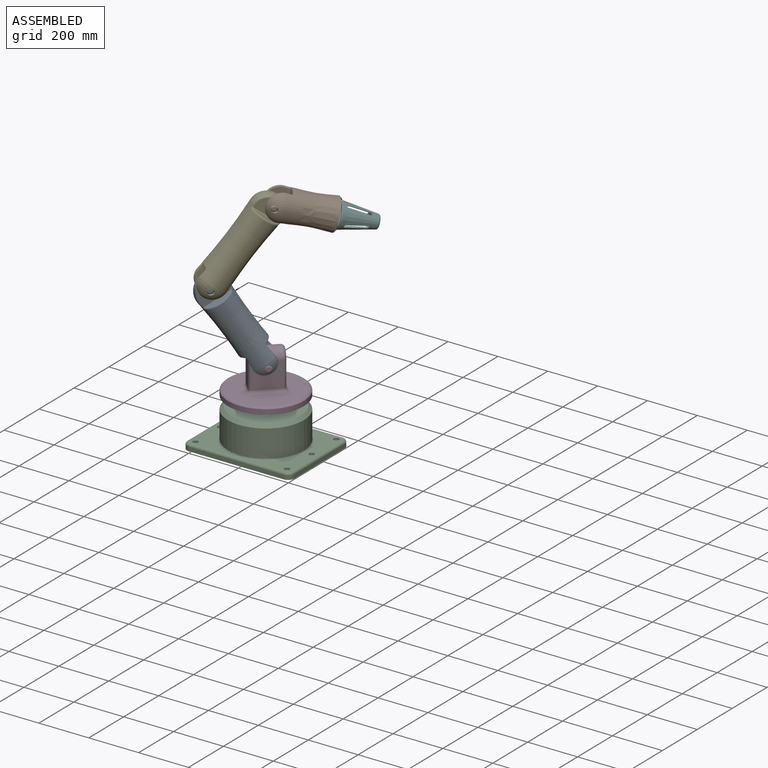
[diagram: assembled view]
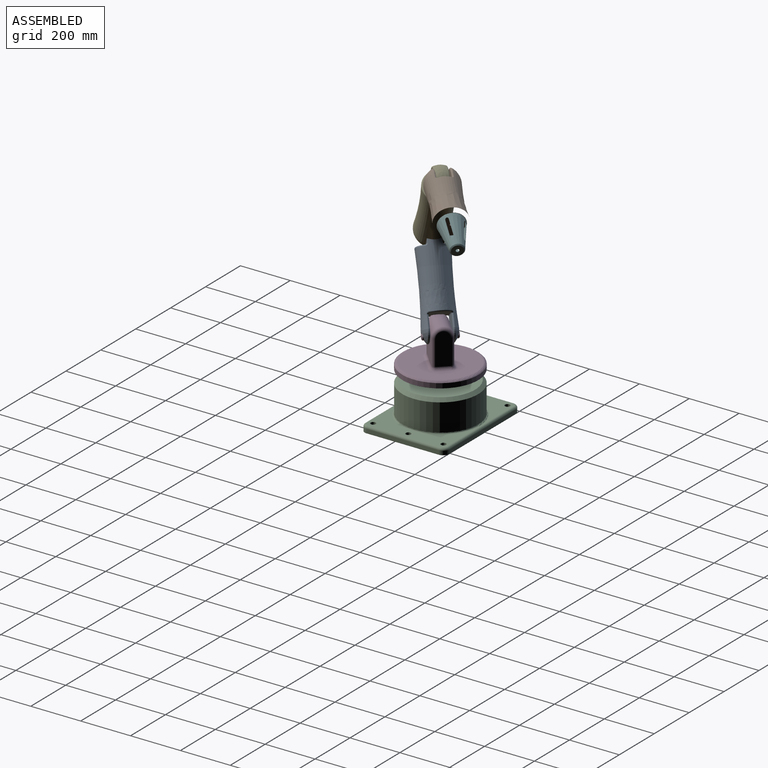
[diagram: assembled view, second angle]
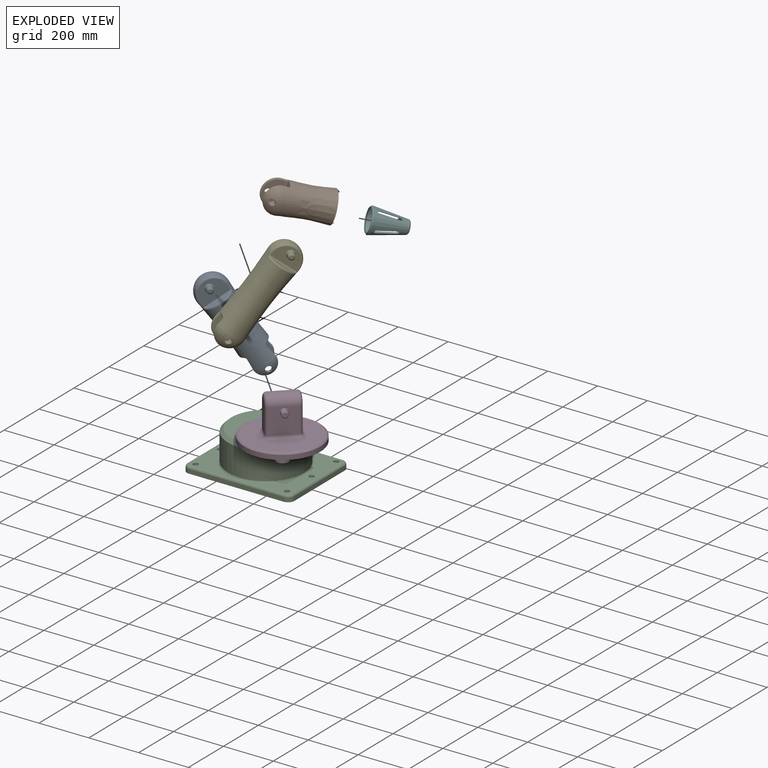
[diagram: exploded view]
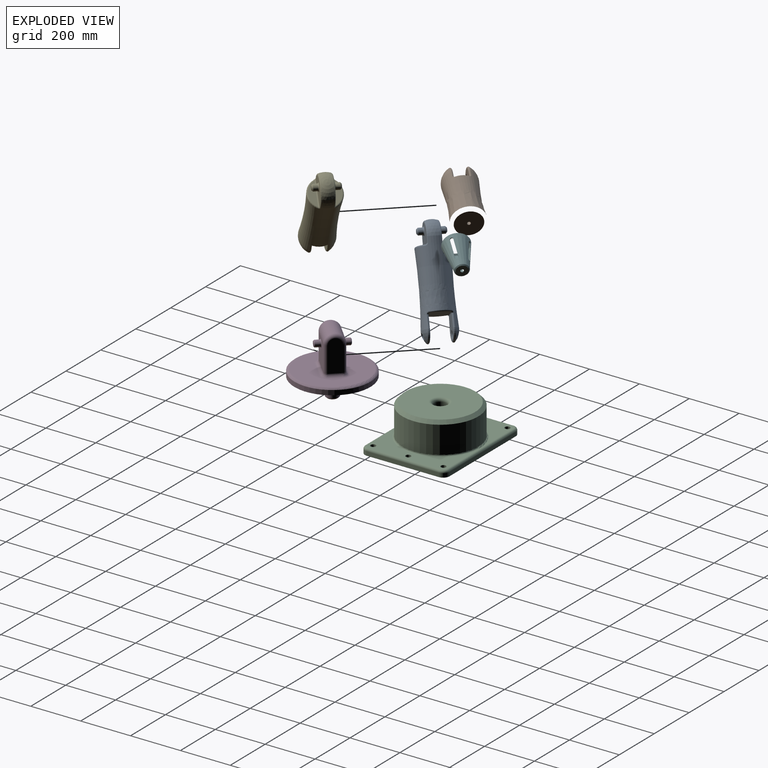
[diagram: exploded view, second angle]
ASSEMBLY  parts=6 mates=5
PART A: 53 faces, bbox 132.9x129.6x417.7 mm
  f0: revolved ~304.8x126.67mm, area 76830.9mm2, adj f1,f12,f13,f14,f15,f16,f17,f18
  f1: bspline ~14.54x14.39mm, area 139.9mm2, adj f0,f2,f12,f52
  f2: cylinder r=5.08mm len=87.3mm, axis (0,-1,0), area 623.6mm2, adj f1,f3,f9,f48
  f3: plane 109.46x66.04mm, normal (0,0,1), area 6762.6mm2, adj f2,f4,f12,f47
  f4: cylinder r=5.08mm len=87.3mm, axis (0,1,0), area 623.6mm2, adj f3,f5,f13,f46
  f5: plane 87.07x78.71mm, normal (1,0,0), area 4953.4mm2, adj f4,f6,f7,f14,f15
  f6: bspline ~63.9x19.12mm, area 595.2mm2, adj f5,f15,f17,f46
  f7: torus R=17.78mm, axis (-1,0,0), area 729.3mm2, adj f5,f8
  f8: cylinder r=12.7mm len=25.4mm, axis (-1,0,0), area 1323.3mm2, adj f7,f16
  f9: plane 87.07x78.71mm, normal (-1,0,0), area 4953.4mm2, adj f2,f10,f49,f51,f52
  f10: torus R=17.78mm, axis (-1,0,0), area 729.3mm2, adj f9,f11
  f11: cylinder r=12.7mm len=25.4mm, axis (-1,0,0), area 1336.4mm2, adj f10,f50
  f12: torus R=54.73mm, axis (0,0,1), area 619mm2, adj f0,f1,f3,f13
  f13: bspline ~14.53x14.52mm, area 139.9mm2, adj f0,f4,f12,f14
  f14: bspline ~63.9x19.12mm, area 595.2mm2, adj f0,f5,f13,f15
  f15: torus R=39.35mm, axis (-1,0,0), area 1650.1mm2, adj f0,f5,f6,f14,f16,f17
  f16: sphere r=63.5mm, area 2767.8mm2, adj f0,f8,f15,f17
  f17: revolved ~48x5.12mm, area 96mm2, adj f0,f6,f15,f16
  f18: revolved ~0x0mm, area 0mm2, adj f0,f46
  f19: bspline ~12.3x12.26mm, area 92.4mm2, adj f0,f20,f28,f45
  f20: cylinder r=5.08mm len=106.42mm, axis (0,1,0), area 802.3mm2, adj f19,f21,f27,f44
  f21: plane 109.55x75.09mm, normal (-1,0,0), area 5912.6mm2, adj f20,f22,f26,f28,f43
  f22: torus R=17.78mm, axis (1,0,0), area 729.3mm2, adj f21,f23
  f23: cylinder r=12.7mm len=25.4mm, axis (-1,0,0), area 1216.1mm2, adj f22,f24
  f24: cone r=7.62mm half-angle=45deg, axis (-1,0,0), area 458.6mm2, adj f23,f25
  f25: plane 15.24x15.24mm, normal (-1,0,0), area 182.4mm2, adj f24
  f26: torus R=54.77mm, axis (1,0,0), area 1114.2mm2, adj f21,f28,f42,f43
  f27: plane 94.66x25.81mm, normal (0,0,-1), area 1722.1mm2, adj f20,f45
  f28: bspline ~52.16x8.45mm, area 127.2mm2, adj f0,f19,f21,f26,f42
  f29: bspline ~52.16x8.45mm, area 127.2mm2, adj f0,f30,f31,f38,f42
  f30: torus R=54.77mm, axis (1,0,0), area 1114.2mm2, adj f29,f31,f41,f42
  f31: plane 109.55x75.09mm, normal (1,0,0), area 5912.6mm2, adj f29,f30,f32,f36,f41
  f32: torus R=17.78mm, axis (1,0,0), area 729.3mm2, adj f31,f33
  f33: cylinder r=12.7mm len=25.4mm, axis (1,0,0), area 1216.1mm2, adj f32,f34
  f34: cone r=12.7mm half-angle=45deg, axis (1,0,0), area 458.6mm2, adj f33,f35
  f35: plane 15.24x15.24mm, normal (1,0,0), area 182.4mm2, adj f34
  f36: cylinder r=5.08mm len=106.42mm, axis (0,1,0), area 802.3mm2, adj f31,f37,f38,f40
  f37: plane 94.66x25.81mm, normal (0,0,-1), area 1722.1mm2, adj f36,f39
  f38: bspline ~12.68x12.08mm, area 92.4mm2, adj f0,f29,f36,f39
  f39: torus R=56.29mm, axis (0,0,1), area 988mm2, adj f0,f37,f38,f40
  f40: bspline ~12.3x12.26mm, area 92.4mm2, adj f0,f36,f39,f41
  f41: bspline ~52.16x8.45mm, area 127.2mm2, adj f0,f30,f31,f40,f42
  f42: sphere r=63.5mm, area 8812.3mm2, adj f0,f26,f28,f29,f30,f41,f43
  f43: bspline ~52.16x8.45mm, area 127.2mm2, adj f0,f21,f26,f42,f44
  f44: bspline ~12.68x12.08mm, area 92.4mm2, adj f0,f20,f43,f45
  f45: torus R=56.29mm, axis (0,0,1), area 988mm2, adj f0,f19,f27,f44
  f46: bspline ~14.54x14.39mm, area 139.9mm2, adj f0,f4,f6,f18,f47
  f47: torus R=54.73mm, axis (0,0,1), area 619mm2, adj f0,f3,f46,f48
  f48: bspline ~14.53x14.52mm, area 139.9mm2, adj f0,f2,f47,f49
  f49: bspline ~63.9x19.12mm, area 595.2mm2, adj f0,f9,f48,f51
  f50: sphere r=63.5mm, area 2767.6mm2, adj f0,f11,f51
  f51: torus R=39.35mm, axis (-1,0,0), area 1650.1mm2, adj f0,f9,f49,f50,f52
  f52: bspline ~63.9x19.12mm, area 595.2mm2, adj f0,f1,f9,f51
PART B: 26 faces, bbox 127x132.5x263.2 mm
  f0: plane 101.6x101.6mm, normal (0,0,1), area 7980.6mm2, adj f1,f2
  f1: cone r=50.8mm half-angle=42.9deg, axis (0,0,-1), area 6151.1mm2, adj f0
  f2: cylinder r=6.35mm len=50.8mm, axis (0,0,1), area 2026.8mm2, adj f0,f3
  f3: plane 12.7x12.7mm, normal (0,0,1), area 126.7mm2, adj f2
  f4: sphere r=63.5mm, area 5479.4mm2, adj f5,f24,f25
  f5: cylinder r=12.7mm len=36.03mm, axis (1,0,0), area 2359mm2, adj f4,f6
  f6: plane 99.68x70.16mm, normal (-1,0,0), area 5383.1mm2, adj f5,f7,f22,f23,f24
  f7: bspline ~90.77x16.49mm, area 223.7mm2, adj f6,f8,f24,f25
  f8: bspline ~14.02x12.16mm, area 111.8mm2, adj f7,f9,f22,f25
  f9: torus R=56.12mm, axis (0,0,1), area 368mm2, adj f8,f10,f21,f25
  f10: bspline ~14.09x10.85mm, area 111.8mm2, adj f9,f11,f20,f25
  f11: cylinder r=5.08mm len=104.63mm, axis (0,-1,0), area 800.7mm2, adj f10,f12,f19,f21
  f12: bspline ~14.02x12.16mm, area 111.8mm2, adj f11,f13,f15,f25
  f13: torus R=56.12mm, axis (0,0,1), area 368mm2, adj f12,f14,f21,f25
  f14: bspline ~14.09x10.85mm, area 111.8mm2, adj f13,f22,f23,f25
  f15: bspline ~90.77x16.49mm, area 223.7mm2, adj f12,f16,f19,f25
  f16: torus R=49.84mm, axis (-1,0,0), area 1808.7mm2, adj f15,f17,f19,f20,f25
  f17: sphere r=63.5mm, area 5480mm2, adj f16,f18,f25
  f18: cylinder r=12.7mm len=28.94mm, axis (1,0,0), area 2309.5mm2, adj f17,f19
  f19: plane 99.68x70.16mm, normal (1,0,0), area 5383.1mm2, adj f11,f15,f16,f18,f20
  f20: bspline ~90.77x16.49mm, area 223.7mm2, adj f10,f16,f19,f25
  f21: plane 112.24x40.64mm, normal (0,0,-1), area 4459.8mm2, adj f9,f11,f13,f22
  f22: cylinder r=5.08mm len=104.63mm, axis (0,1,0), area 800.7mm2, adj f6,f8,f14,f21
  f23: bspline ~90.77x16.49mm, area 223.7mm2, adj f6,f14,f24,f25
  f24: torus R=49.84mm, axis (-1,0,0), area 1808.7mm2, adj f4,f6,f7,f23,f25
  f25: revolved ~190.54x127mm, area 139092.2mm2, adj f4,f7,f8,f9,f10,f12,f13,f14
PART C: 43 faces, bbox 435.1x343.7x152.4 mm
  f0: cylinder r=152.4mm len=304.8mm, axis (0,0,1), area 104584.4mm2, adj f4,f24
  f1: plane 279.4x279.4mm, normal (0,0,1), area 56751.2mm2, adj f4,f5
  f2: cylinder r=25.4mm len=88.9mm, axis (0,0,1), area 14187.8mm2, adj f3,f5
  f3: plane 50.8x50.8mm, normal (0,0,1), area 2026.8mm2, adj f2
  f4: cone r=139.7mm half-angle=45deg, axis (0,0,-1), area 16481.6mm2, adj f0,f1
  f5: torus R=38.1mm, axis (0,0,1), area 3762.2mm2, adj f1,f2
  f6: plane 380.13x15.88mm, normal (0,-1,0), area 6034.6mm2, adj f11,f12,f15,f23
  f7: plane 288.72x15.88mm, normal (-1,0,0), area 4583.4mm2, adj f11,f12,f13,f19
  f8: plane 380.13x15.88mm, normal (0,1,0), area 6034.6mm2, adj f11,f13,f14,f16
  f9: plane 288.72x15.88mm, normal (1,0,0), area 4583.4mm2, adj f11,f14,f15,f20
  f10: plane 411.88x320.47mm, normal (0,0,1), area 51860.9mm2, adj f16,f17,f18,f19,f20,f21,f22,f23
  f11: plane 430.93x339.52mm, normal (0,0,-1), area 144898.1mm2, adj f6,f7,f8,f9,f12,f13,f14,f15
  f12: cylinder r=25.4mm len=25.4mm, axis (0,0,1), area 633.4mm2, adj f6,f7,f11,f21
  f13: cylinder r=25.4mm len=25.4mm, axis (0,0,-1), area 633.4mm2, adj f7,f8,f11,f17
  f14: cylinder r=25.4mm len=25.4mm, axis (0,0,1), area 633.4mm2, adj f8,f9,f11,f18
  f15: cylinder r=25.4mm len=25.4mm, axis (0,0,-1), area 633.4mm2, adj f6,f9,f11,f22
  f16: cylinder r=9.53mm len=380.13mm, axis (-1,0,0), area 5687.4mm2, adj f8,f10,f17,f18
  f17: torus R=15.88mm, axis (0,0,-1), area 515.6mm2, adj f10,f13,f16,f19
  f18: torus R=15.88mm, axis (0,0,-1), area 515.6mm2, adj f10,f14,f16,f20
  f19: cylinder r=9.53mm len=288.72mm, axis (0,-1,0), area 4319.8mm2, adj f7,f10,f17,f21
  f20: cylinder r=9.53mm len=288.72mm, axis (0,1,0), area 4319.8mm2, adj f9,f10,f18,f22
  f21: torus R=15.88mm, axis (0,0,-1), area 515.6mm2, adj f10,f12,f19,f23
  f22: torus R=15.88mm, axis (0,0,-1), area 515.6mm2, adj f10,f15,f20,f23
  f23: cylinder r=9.53mm len=380.13mm, axis (1,0,0), area 5687.4mm2, adj f6,f10,f21,f22
  f24: torus R=157.48mm, axis (0,0,-1), area 7733.5mm2, adj f0,f10
  f25: cylinder r=6.75mm len=13.49mm, axis (0,0,1), area 538.3mm2, adj f11,f26
  f26: plane 20.64x20.64mm, normal (0,0,1), area 191.5mm2, adj f25,f27
  f27: cylinder r=10.32mm len=20.64mm, axis (0,0,1), area 823.4mm2, adj f10,f26
  f28: cylinder r=6.75mm len=13.49mm, axis (0,0,1), area 538.3mm2, adj f11,f29
  f29: plane 20.64x20.64mm, normal (0,0,1), area 191.5mm2, adj f28,f30
  f30: cylinder r=10.32mm len=20.64mm, axis (0,0,1), area 823.4mm2, adj f10,f29
  f31: cylinder r=6.75mm len=13.49mm, axis (0,0,1), area 538.3mm2, adj f11,f32
  f32: plane 20.64x20.64mm, normal (0,0,1), area 191.5mm2, adj f31,f33
  f33: cylinder r=10.32mm len=20.64mm, axis (0,0,1), area 823.4mm2, adj f10,f32
  f34: cylinder r=6.75mm len=13.49mm, axis (0,0,1), area 538.3mm2, adj f11,f35
  f35: plane 20.64x20.64mm, normal (0,0,1), area 191.5mm2, adj f34,f36
  f36: cylinder r=10.32mm len=20.64mm, axis (0,0,1), area 823.4mm2, adj f10,f35
  f37: cylinder r=6.75mm len=13.49mm, axis (0,0,1), area 538.3mm2, adj f11,f38
  f38: plane 20.64x20.64mm, normal (0,0,1), area 191.5mm2, adj f37,f39
  f39: cylinder r=10.32mm len=20.64mm, axis (0,0,1), area 823.4mm2, adj f10,f38
  f40: cylinder r=6.75mm len=13.49mm, axis (0,0,1), area 538.3mm2, adj f11,f41
  f41: plane 20.64x20.64mm, normal (0,0,1), area 191.5mm2, adj f40,f42
  f42: cylinder r=10.32mm len=20.64mm, axis (0,0,1), area 823.4mm2, adj f10,f41
PART D: 40 faces, bbox 332.3x332.3x257.2 mm
  f0: plane 281.58x281.58mm, normal (0,0,1), area 47336.7mm2, adj f16,f17,f19,f20,f22,f23,f24,f25
  f1: torus R=25.4mm, axis (0,-1,0), area 2132.3mm2, adj f10,f12,f18,f31
  f2: torus R=25.4mm, axis (0,-1,0), area 2132.3mm2, adj f10,f13,f21,f27
  f3: cylinder r=25.4mm len=66.04mm, axis (0,0,-1), area 10539.5mm2, adj f8,f9
  f4: plane 40.64x40.64mm, normal (0,0,-1), area 1297.2mm2, adj f8
  f5: cylinder r=152.4mm len=304.8mm, axis (0,0,-1), area 18241.5mm2, adj f6,f7
  f6: plane 304.8x304.8mm, normal (0,0,-1), area 70047.2mm2, adj f5,f9
  f7: cone r=146.05mm half-angle=45deg, axis (0,0,-1), area 3531.1mm2, adj f5,f25
  f8: cone r=25.4mm half-angle=45deg, axis (0,0,1), area 1031.9mm2, adj f3,f4
  f9: torus R=30.48mm, axis (0,0,1), area 1366mm2, adj f3,f6
  f10: cylinder r=38.1mm len=101.6mm, axis (0,1,0), area 12372.7mm2, adj f1,f2,f11,f26,f27,f31
  f11: plane 101.6x100.73mm, normal (-1,0,0), area 9504.9mm2, adj f10,f18,f21,f24,f36
  f12: plane 127.02x50.89mm, normal (0,-1,0), area 6173mm2, adj f1,f14,f18,f19,f31
  f13: plane 127x50.82mm, normal (0,1,0), area 6173mm2, adj f2,f15,f20,f21,f27
  f14: cylinder r=12.7mm len=100.61mm, axis (0,0,-1), area 2.3mm2, adj f12,f16,f31
  f15: cylinder r=12.7mm len=100.61mm, axis (0,0,1), area 2.3mm2, adj f13,f17,f27
  f16: torus R=25.4mm, axis (0,0,1), area 0.7mm2, adj f0,f14,f19,f30
  f17: torus R=25.4mm, axis (0,0,1), area 0.7mm2, adj f0,f15,f20,f29
  f18: cylinder r=12.7mm len=100.9mm, axis (0,0,1), area 2011.1mm2, adj f1,f11,f12,f22
  f19: cylinder r=12.7mm len=50.8mm, axis (-1,0,0), area 1013.3mm2, adj f0,f12,f16,f22
  f20: cylinder r=12.7mm len=50.8mm, axis (1,0,0), area 1013.3mm2, adj f0,f13,f17,f23
  f21: cylinder r=12.7mm len=100.9mm, axis (0,0,-1), area 2011.1mm2, adj f2,f11,f13,f23
  f22: bspline ~29.81x29.81mm, area 542.5mm2, adj f0,f18,f19,f24
  f23: bspline ~29.81x25.4mm, area 542.5mm2, adj f0,f20,f21,f24
  f24: cylinder r=12.7mm len=101.6mm, axis (0,1,0), area 2026.5mm2, adj f0,f11,f22,f23
  f25: torus R=140.79mm, axis (0,0,1), area 9120.4mm2, adj f0,f7
  f26: plane 101.62x100.41mm, normal (1,0,0), area 9469.8mm2, adj f10,f27,f28,f31,f37
  f27: cylinder r=12.7mm len=100.9mm, axis (0,0,-1), area 2011.1mm2, adj f2,f10,f13,f15,f26,f29
  f28: cylinder r=12.7mm len=101.6mm, axis (0,1,0), area 2026.5mm2, adj f0,f26,f29,f30
  f29: bspline ~29.81x25.4mm, area 542.6mm2, adj f0,f17,f27,f28
  f30: bspline ~29.81x29.81mm, area 542.6mm2, adj f0,f16,f28,f31
  f31: cylinder r=12.7mm len=100.9mm, axis (0,0,1), area 2011.1mm2, adj f1,f10,f12,f14,f26,f30
  f32: plane 19.05x19.05mm, normal (1,0,0), area 285mm2, adj f38
  f33: cylinder r=12.7mm len=25.4mm, axis (-1,0,0), area 1570mm2, adj f37,f38
  f34: cylinder r=12.7mm len=25.4mm, axis (1,0,0), area 1570mm2, adj f36,f39
  f35: plane 19.05x19.05mm, normal (-1,0,0), area 285mm2, adj f39
  f36: bspline ~30.46x30.45mm, area 341.5mm2, adj f11,f34
  f37: bspline ~30.46x30.45mm, area 341.5mm2, adj f26,f33
  f38: cone r=9.53mm half-angle=45deg, axis (-1,0,0), area 313.5mm2, adj f32,f33
  f39: cone r=12.7mm half-angle=45deg, axis (1,0,0), area 313.5mm2, adj f34,f35
PART E: 53 faces, bbox 134.7x132.1x429 mm
  f0: revolved ~304.8x126.97mm, area 8268.8mm2, adj f1,f12,f13,f14,f15,f16,f17,f18
  f1: bspline ~14.1x10.82mm, area 111.9mm2, adj f0,f2,f12,f52
  f2: cylinder r=5.08mm len=104.29mm, axis (0,-1,0), area 796.7mm2, adj f1,f3,f6,f48
  f3: plane 99.68x75.46mm, normal (-1,0,0), area 5405.8mm2, adj f2,f4,f49,f51,f52
  f4: torus R=17.78mm, axis (-1,0,0), area 729.3mm2, adj f3,f5
  f5: cylinder r=12.7mm len=32.74mm, axis (-1,0,0), area 2346.5mm2, adj f4,f50
  f6: plane 111.93x40.64mm, normal (0,0,1), area 4446.8mm2, adj f2,f7,f12,f47
  f7: cylinder r=5.08mm len=104.29mm, axis (0,1,0), area 796.7mm2, adj f6,f8,f13,f46
  f8: plane 99.68x75.46mm, normal (1,0,0), area 5405.8mm2, adj f7,f9,f10,f14,f15
  f9: bspline ~59.12x13.57mm, area 280.4mm2, adj f8,f15,f17,f46
  f10: torus R=17.78mm, axis (-1,0,0), area 729.3mm2, adj f8,f11
  f11: cylinder r=12.7mm len=32.74mm, axis (-1,0,0), area 2326.6mm2, adj f10,f16
  f12: torus R=55.97mm, axis (0,0,1), area 365.1mm2, adj f0,f1,f6,f13
  f13: bspline ~14.06x12.13mm, area 111.9mm2, adj f0,f7,f12,f14
  f14: bspline ~59.12x13.57mm, area 280.4mm2, adj f0,f8,f13,f15
  f15: torus R=49.84mm, axis (-1,0,0), area 1808.7mm2, adj f0,f8,f9,f14,f16,f17
  f16: sphere r=63.5mm, area 5521.3mm2, adj f0,f11,f15,f17
  f17: revolved ~25.95x2.21mm, area 16.1mm2, adj f0,f9,f15,f16
  f18: revolved ~0x0mm, area 0mm2, adj f0,f46
  f19: bspline ~12.35x11.37mm, area 92.5mm2, adj f0,f20,f28,f45
  f20: cylinder r=5.08mm len=108.34mm, axis (0,-1,0), area 817.9mm2, adj f19,f21,f27,f44
  f21: plane 109.54x62.23mm, normal (-1,0,0), area 4531.3mm2, adj f20,f22,f23,f28,f43
  f22: torus R=54.77mm, axis (-1,0,0), area 1114.2mm2, adj f21,f28,f42,f43
  f23: torus R=17.78mm, axis (-1,0,0), area 729.3mm2, adj f21,f24
  f24: cylinder r=12.7mm len=25.4mm, axis (-1,0,0), area 1216.1mm2, adj f23,f25
  f25: cone r=7.62mm half-angle=45deg, axis (-1,0,0), area 458.6mm2, adj f24,f26
  f26: plane 15.24x15.24mm, normal (-1,0,0), area 182.4mm2, adj f25
  f27: plane 96.67x26.66mm, normal (0,0,-1), area 1818.5mm2, adj f20,f45
  f28: bspline ~45.66x8.04mm, area 47.9mm2, adj f0,f19,f21,f22,f42
  f29: bspline ~45.66x8.04mm, area 47.9mm2, adj f0,f30,f31,f38,f42
  f30: torus R=54.77mm, axis (-1,0,0), area 1114.2mm2, adj f29,f31,f41,f42
  f31: plane 109.54x62.23mm, normal (1,0,0), area 4531.3mm2, adj f29,f30,f32,f34,f41
  f32: cylinder r=5.08mm len=108.34mm, axis (0,-1,0), area 817.9mm2, adj f31,f33,f38,f40
  f33: plane 96.67x26.66mm, normal (0,0,-1), area 1818.5mm2, adj f32,f39
  f34: torus R=17.78mm, axis (-1,0,0), area 729.3mm2, adj f31,f35
  f35: cylinder r=12.7mm len=25.4mm, axis (1,0,0), area 1216.1mm2, adj f34,f36
  f36: cone r=12.7mm half-angle=45deg, axis (1,0,0), area 458.6mm2, adj f35,f37
  f37: plane 15.24x15.24mm, normal (1,0,0), area 182.4mm2, adj f36
  f38: bspline ~12.68x11.59mm, area 92.6mm2, adj f0,f29,f32,f39
  f39: torus R=57.14mm, axis (0,0,1), area 1015mm2, adj f0,f33,f38,f40
  f40: bspline ~12.35x11.37mm, area 92.5mm2, adj f0,f32,f39,f41
  f41: bspline ~45.66x8.04mm, area 47.9mm2, adj f0,f30,f31,f40,f42
  f42: sphere r=63.5mm, area 8812.3mm2, adj f0,f22,f28,f29,f30,f41,f43
  f43: bspline ~45.66x8.04mm, area 47.9mm2, adj f0,f21,f22,f42,f44
  f44: bspline ~12.68x11.59mm, area 92.6mm2, adj f0,f20,f43,f45
  f45: torus R=57.14mm, axis (0,0,1), area 1015mm2, adj f0,f19,f27,f44
  f46: bspline ~14.1x10.82mm, area 111.9mm2, adj f0,f7,f9,f18,f47
  f47: torus R=55.97mm, axis (0,0,1), area 365.1mm2, adj f0,f6,f46,f48
  f48: bspline ~14.06x12.13mm, area 111.9mm2, adj f0,f2,f47,f49
  f49: bspline ~59.12x13.57mm, area 280.4mm2, adj f0,f3,f48,f51
  f50: sphere r=63.5mm, area 5521.4mm2, adj f0,f5,f51
  f51: torus R=49.84mm, axis (-1,0,0), area 1808.7mm2, adj f0,f3,f49,f50,f52
  f52: bspline ~59.12x13.57mm, area 280.4mm2, adj f0,f1,f3,f51
PART F: 26 faces, bbox 140.2x100.3x100.3 mm
  f0: cone r=50.8mm half-angle=10.3deg, axis (-1,0,0), area 27335.3mm2, adj f4,f5,f9,f10,f11,f12,f13,f14
  f1: cone r=48.3mm half-angle=10.3deg, axis (-1,0,0), area 24735.7mm2, adj f7,f8,f9,f10,f11,f12,f13,f14
  f2: plane 91.44x91.44mm, normal (-1,0,0), area 916mm2, adj f5,f8
  f3: plane 43.72x43.72mm, normal (1,0,0), area 1374.8mm2, adj f4,f25
  f4: cone r=21.86mm half-angle=50.2deg, axis (-1,0,0), area 817.5mm2, adj f0,f3
  f5: cone r=49.89mm half-angle=39.8deg, axis (1,0,0), area 1955.4mm2, adj f0,f2
  f6: plane 41.88x41.88mm, normal (-1,0,0), area 1251mm2, adj f7,f25
  f7: cone r=20.23mm half-angle=50.2deg, axis (-1,0,0), area 503.7mm2, adj f1,f6
  f8: cone r=47.94mm half-angle=39.8deg, axis (1,0,0), area 2094.4mm2, adj f1,f2
  f9: cylinder r=6.35mm len=12.7mm, axis (0,-1,0), area 52.6mm2, adj f0,f1,f10,f12
  f10: plane 73.84x16.6mm, normal (0,0,1), area 192.2mm2, adj f0,f1,f9,f11
  f11: cylinder r=6.35mm len=12.7mm, axis (0,-1,0), area 51.8mm2, adj f0,f1,f10,f12
  f12: plane 73.84x16.6mm, normal (0,0,-1), area 192.2mm2, adj f0,f1,f9,f11
  f13: plane 73.84x16.6mm, normal (0,0,-1), area 192.2mm2, adj f0,f1,f14,f16
  f14: cylinder r=6.35mm len=12.7mm, axis (0,-1,0), area 51.8mm2, adj f0,f1,f13,f15
  f15: plane 73.84x16.6mm, normal (0,0,1), area 192.2mm2, adj f0,f1,f14,f16
  f16: cylinder r=6.35mm len=12.7mm, axis (0,-1,0), area 52.6mm2, adj f0,f1,f13,f15
  f17: cylinder r=6.35mm len=12.7mm, axis (0,0,1), area 52.6mm2, adj f0,f1,f18,f20
  f18: plane 76.69x17.17mm, normal (0,1,0), area 199.6mm2, adj f0,f1,f17,f19
  f19: cylinder r=6.35mm len=12.7mm, axis (0,0,1), area 52.4mm2, adj f0,f1,f18,f20
  f20: plane 76.44x17.12mm, normal (0,-1,0), area 199mm2, adj f0,f1,f17,f19
  f21: plane 76.44x17.12mm, normal (0,-1,0), area 199mm2, adj f0,f1,f22,f24
  f22: cylinder r=6.35mm len=12.7mm, axis (0,0,1), area 52.4mm2, adj f0,f1,f21,f23
  f23: plane 76.69x17.17mm, normal (0,1,0), area 199.6mm2, adj f0,f1,f22,f24
  f24: cylinder r=6.35mm len=12.7mm, axis (0,0,1), area 52.1mm2, adj f0,f1,f21,f23
  f25: cylinder r=6.35mm len=12.7mm, axis (1,0,0), area 101.3mm2, adj f3,f6
PLACE A rot(axis=(0.56,-0.24,-0.8),56.6deg) t=(-94.7,-41.16,436.49)mm
PLACE B rot(axis=(-0.88,0.38,-0.29),111.9deg) t=(78.97,124.67,835.03)mm
PLACE C t=(-26.59,23.76,134.86)mm fixed
PLACE D rot(axis=(0,0,1),133.7deg) t=(-26.59,23.76,96.76)mm
PLACE E rot(axis=(-0.59,0.25,-0.76),58.5deg) t=(-91.41,-37.92,722.05)mm
PLACE F rot(axis=(-0.92,-0.34,0.2),161.5deg) t=(146.5,189.08,810.09)mm
MATE revolute B.f5 <-> E.f24  axis (0.69,-0.72,0) through (-29.7,56.11,868.69)mm
MATE revolute C.f2 <-> D.f3  axis (0,0,1) through (-26.59,23.76,134.86)mm
MATE revolute B.f1 <-> F.f0  axis (0.7,0.67,-0.26) through (149.99,192.41,808.8)mm
MATE revolute D.f33 <-> A.f7  axis (0.69,-0.72,0) through (-0.29,-3.8,293.61)mm
MATE revolute A.f22 <-> E.f4  axis (0.69,-0.72,0) through (-144.44,-130.68,585)mm
